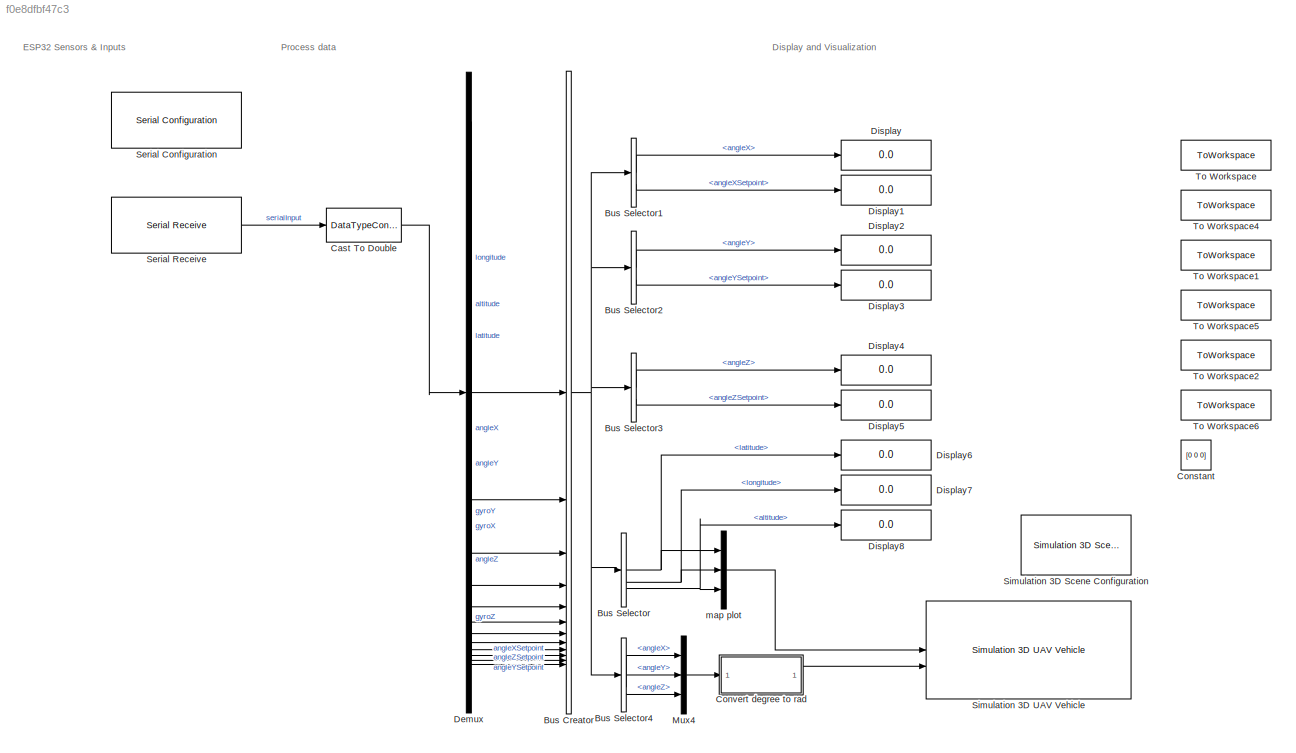
MODEL slx_f0e8dfbf47c3
KIND model
CONFIG AbsTol = auto
CONFIG EnableMultiTasking = on
CONFIG FixedStep = auto
CONFIG MaxStep = auto
CONFIG MinStep = auto
CONFIG RelTol = 1e-3
CONFIG SampleTimeConstraint = Unconstrained
CONFIG SolverName = ode45
CONFIG StartTime = 0.0
CONFIG StopTime = 10.0
BLOCK [BusCreator] Bus Creator
  DisplayOption = bar
  InheritFromInputs = on
  Inputs = 12
BLOCK [BusSelector] Bus Selector
  OutputSignals = latitude,longitude,altitude
BLOCK [BusSelector] Bus Selector1
  OutputSignals = angleX,angleXSetpoint
BLOCK [BusSelector] Bus Selector2
  OutputSignals = angleY,angleYSetpoint
BLOCK [BusSelector] Bus Selector3
  OutputSignals = angleZ,angleZSetpoint
BLOCK [BusSelector] Bus Selector4
  OutputSignals = angleX,angleY,angleZ
BLOCK [DataTypeConversion] Cast To Double
  OutDataTypeStr = double
  RndMeth = Floor
  SaturateOnIntegerOverflow = off
BLOCK [Constant] Constant
  Commented = on
  Value = [0 0 0]
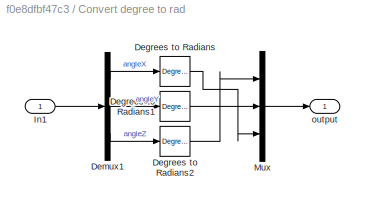
BLOCK [SubSystem] Convert degree to rad
BLOCK [Reference] Convert degree to rad/Degrees to Radians  REF=simulink_extras/Transformations/Degrees to
Radians
  SourceBlock = simulink_extras/Transformations/Degrees to\nRadians
  SourceType = DegreesToRadians
BLOCK [Reference] Convert degree to rad/Degrees to Radians1  REF=simulink_extras/Transformations/Degrees to
Radians
  SourceBlock = simulink_extras/Transformations/Degrees to\nRadians
  SourceType = DegreesToRadians
BLOCK [Reference] Convert degree to rad/Degrees to Radians2  REF=simulink_extras/Transformations/Degrees to
Radians
  SourceBlock = simulink_extras/Transformations/Degrees to\nRadians
  SourceType = DegreesToRadians
BLOCK [Demux] Convert degree to rad/Demux1
  Outputs = 3
BLOCK [Inport] Convert degree to rad/In1
BLOCK [Mux] Convert degree to rad/Mux
  DisplayOption = bar
  Inputs = 3
BLOCK [Outport] Convert degree to rad/output
BLOCK [Demux] Demux
  Outputs = 12
BLOCK [Display] Display
  Decimation = 1
BLOCK [Display] Display1
  Decimation = 1
BLOCK [Display] Display2
  Decimation = 1
BLOCK [Display] Display3
  Decimation = 1
BLOCK [Display] Display4
  Decimation = 1
BLOCK [Display] Display5
  Decimation = 1
BLOCK [Display] Display6
  Decimation = 1
BLOCK [Display] Display7
  Decimation = 1
BLOCK [Display] Display8
  Decimation = 1
BLOCK [Mux] Mux4
  DisplayOption = bar
  Inputs = 3
BLOCK [Reference] Serial Configuration  REF=instrumentseriallib/Serial Configuration
  LibrarySourceBlock = instrumentlib/Serial Configuration
  Priority = -200000
  SourceBlock = instrumentseriallib/Serial Configuration
  SourceType = system.SerialConfiguration
BLOCK [Reference] Serial Receive  REF=instrumentseriallib/Serial Receive
  LibrarySourceBlock = instrumentlib/Serial Receive
  Priority = 1
  SourceBlock = instrumentseriallib/Serial Receive
  SourceType = system.SerialReceive
BLOCK [Reference] Simulation 3D Scene Configuration  REF=sim3dlib/Simulation 3D Scene Configuration
  LibrarySourceBlock = uavsim3dlib/Simulation 3D Scene Configuration
  Priority = 0
  SourceBlock = sim3dlib/Simulation 3D Scene Configuration
  SourceType = Simulation 3D Scene Configuration
BLOCK [Reference] Simulation 3D UAV Vehicle  REF=uavsim3dlib/Simulation 3D UAV Vehicle
  Priority = -1
  SourceBlock = uavsim3dlib/Simulation 3D UAV Vehicle
  SourceType = Simulation 3D UAV Vehicle
BLOCK [ToWorkspace] To Workspace
  Commented = on
  FixptAsFi = on
  MaxDataPoints = inf
  SampleTime = -1
  SaveFormat = Timeseries
  VariableName = angleX
BLOCK [ToWorkspace] To Workspace1
  Commented = on
  FixptAsFi = on
  MaxDataPoints = inf
  SampleTime = -1
  SaveFormat = Timeseries
  VariableName = angleY
BLOCK [ToWorkspace] To Workspace2
  Commented = on
  FixptAsFi = on
  MaxDataPoints = inf
  SampleTime = -1
  SaveFormat = Timeseries
  VariableName = angleZ
BLOCK [ToWorkspace] To Workspace4
  Commented = on
  FixptAsFi = on
  MaxDataPoints = inf
  SampleTime = -1
  SaveFormat = Timeseries
  VariableName = angleXSetpoint
BLOCK [ToWorkspace] To Workspace5
  Commented = on
  FixptAsFi = on
  MaxDataPoints = inf
  SampleTime = -1
  SaveFormat = Timeseries
  VariableName = angleYSetpoint
BLOCK [ToWorkspace] To Workspace6
  Commented = on
  FixptAsFi = on
  MaxDataPoints = inf
  SampleTime = -1
  SaveFormat = Timeseries
  VariableName = angleZSetpoint
BLOCK [Mux] map plot
  DisplayOption = bar
  Inputs = 3
ANNOTATION (root): Display and Visualization
ANNOTATION (root): ESP32 Sensors & Inputs
ANNOTATION (root): Process data
NET Bus Creator:1 -> Bus Selector1:1, Bus Selector2:1, Bus Selector3:1, Bus Selector4:1, Bus Selector:1
LINE Bus Selector1:1 -> Display:1
LINE Bus Selector1:2 -> Display1:1
LINE Bus Selector2:1 -> Display2:1
LINE Bus Selector2:2 -> Display3:1
LINE Bus Selector3:1 -> Display4:1
LINE Bus Selector3:2 -> Display5:1
LINE Bus Selector4:1 -> Mux4:1
LINE Bus Selector4:2 -> Mux4:2
LINE Bus Selector4:3 -> Mux4:3
NET Bus Selector:1 -> Display6:1, map plot:1
NET Bus Selector:2 -> Display7:1, map plot:2
NET Bus Selector:3 -> Display8:1, map plot:3
LINE Cast To Double:1 -> Demux:1
LINE Convert degree to rad/Degrees to Radians1:1 -> Convert degree to rad/Mux:2
LINE Convert degree to rad/Degrees to Radians2:1 -> Convert degree to rad/Mux:1
LINE Convert degree to rad/Degrees to Radians:1 -> Convert degree to rad/Mux:3
LINE Convert degree to rad/Demux1:1 -> Convert degree to rad/Degrees to Radians:1
LINE Convert degree to rad/Demux1:2 -> Convert degree to rad/Degrees to Radians1:1
LINE Convert degree to rad/Demux1:3 -> Convert degree to rad/Degrees to Radians2:1
LINE Convert degree to rad/In1:1 -> Convert degree to rad/Demux1:1
LINE Convert degree to rad/Mux:1 -> Convert degree to rad/output:1
LINE Convert degree to rad:1 -> Simulation 3D UAV Vehicle:2
LINE Demux:1 -> Bus Creator:1
LINE Demux:10 -> Bus Creator:10
LINE Demux:11 -> Bus Creator:11
LINE Demux:12 -> Bus Creator:12
LINE Demux:2 -> Bus Creator:2
LINE Demux:3 -> Bus Creator:3
LINE Demux:4 -> Bus Creator:4
LINE Demux:5 -> Bus Creator:5
LINE Demux:6 -> Bus Creator:6
LINE Demux:7 -> Bus Creator:7
LINE Demux:8 -> Bus Creator:8
LINE Demux:9 -> Bus Creator:9
LINE Mux4:1 -> Convert degree to rad:1
LINE Serial Receive:1 -> Cast To Double:1
LINE map plot:1 -> Simulation 3D UAV Vehicle:1
note: NET lines group one-source signal fan-out (src -> all destinations, sorted); 1:1 wires keep LINE
